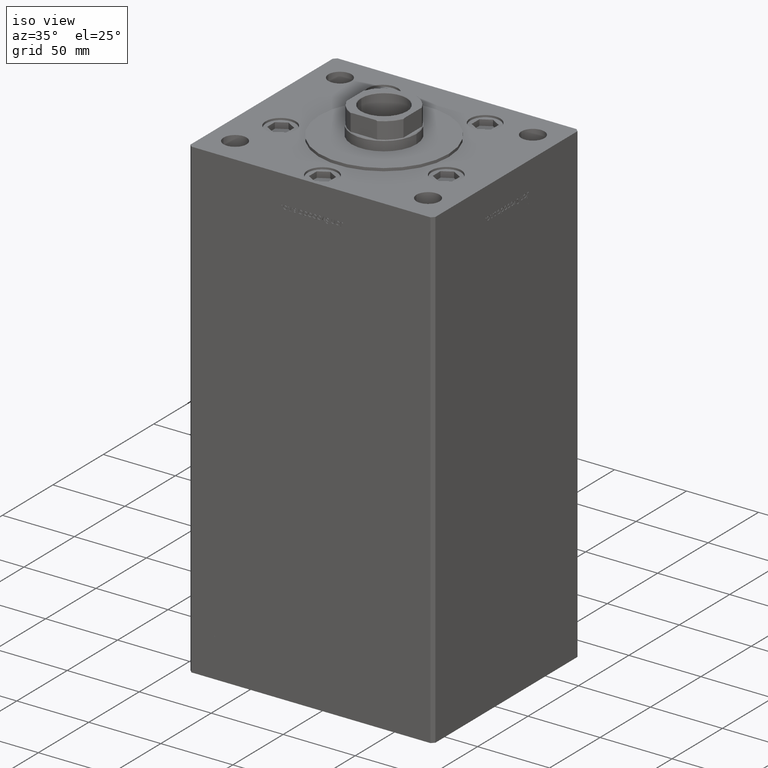
[diagram: clean part render]
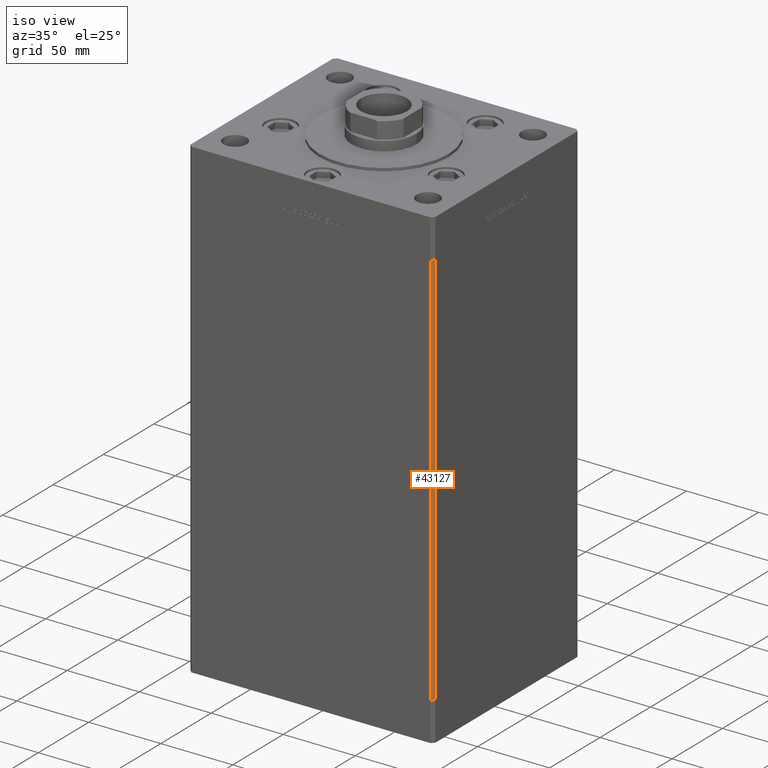
[diagram: same view with one face highlighted and labeled with its STEP entity id]
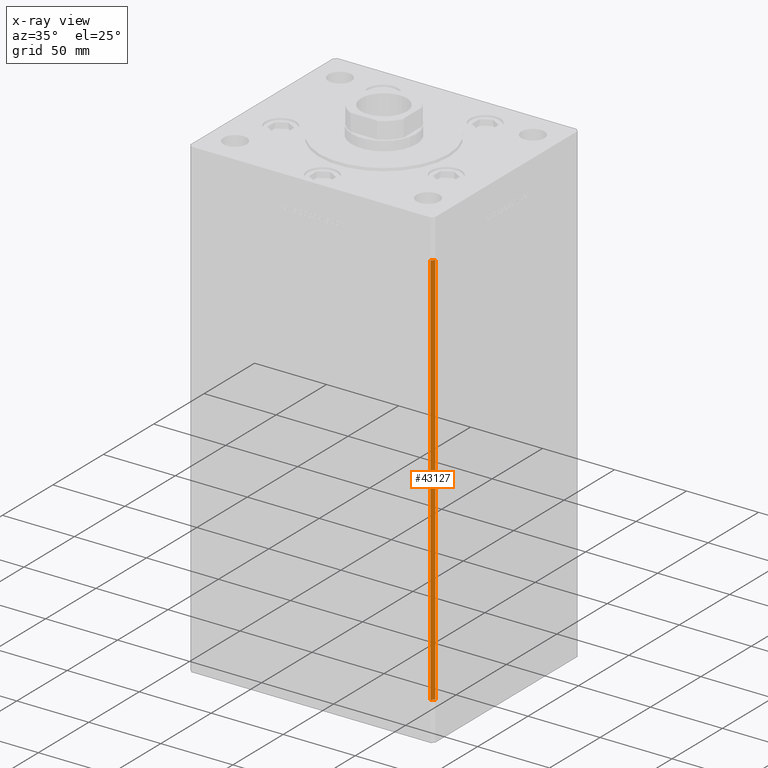
[diagram: x-ray of the same camera — body ghosted, the highlighted face saturated]
A machine part, iso view. The second image highlights one B-rep face of the part: STEP entity #43127.
The next image is the same camera in x-ray: the body ghosted, the highlighted face saturated — about 0% of this face is hidden behind the body in this view.
In plain terms, the highlighted planar face has unit normal (0.7071, -0.7071, 0).
Its self-contained STEP definition (entity closure, byte-faithful):
#756 = LINE ( 'NONE', #20001, #15305 ) ;
#859 = EDGE_LOOP ( 'NONE', ( #16010, #40169, #12240, #9629 ) ) ;
#1338 = CARTESIAN_POINT ( 'NONE',  ( 84.99999999999998579, -70.50000000000001421, 276.0000000000000000 ) ) ;
#2755 = FACE_OUTER_BOUND ( 'NONE', #859, .T. ) ;
#3052 = LINE ( 'NONE', #27022, #24761 ) ;
#5918 = PLANE ( 'NONE',  #22151 ) ;
#8225 = EDGE_CURVE ( 'NONE', #36557, #51542, #756, .T. ) ;
#9629 = ORIENTED_EDGE ( 'NONE', *, *, #48797, .T. ) ;
#11528 = EDGE_CURVE ( 'NONE', #36557, #16169, #39075, .T. ) ;
#12240 = ORIENTED_EDGE ( 'NONE', *, *, #8225, .T. ) ;
#12776 = VERTEX_POINT ( 'NONE', #28520 ) ;
#13895 = LINE ( 'NONE', #41057, #28186 ) ;
#14575 = EDGE_CURVE ( 'NONE', #16169, #12776, #3052, .T. ) ;
#15305 = VECTOR ( 'NONE', #16827, 1000.000000000000114 ) ;
#16010 = ORIENTED_EDGE ( 'NONE', *, *, #14575, .F. ) ;
#16169 = VERTEX_POINT ( 'NONE', #48494 ) ;
#16827 = DIRECTION ( 'NONE',  ( -0.7071067811865474617, -0.7071067811865474617, 0.000000000000000000 ) ) ;
#17333 = DIRECTION ( 'NONE',  ( -0.000000000000000000, -0.000000000000000000, -1.000000000000000000 ) ) ;
#18915 = CARTESIAN_POINT ( 'NONE',  ( 82.99999999999998579, -72.50000000000002842, 276.0000000000000000 ) ) ;
#19035 = CARTESIAN_POINT ( 'NONE',  ( 84.99999999999998579, -70.50000000000001421, 276.0000000000000000 ) ) ;
#20001 = CARTESIAN_POINT ( 'NONE',  ( 84.99999999999998579, -70.50000000000001421, 276.0000000000000000 ) ) ;
#22151 = AXIS2_PLACEMENT_3D ( 'NONE', #47020, #30422, #34137 ) ;
#22946 = VECTOR ( 'NONE', #39593, 1000.000000000000000 ) ;
#24761 = VECTOR ( 'NONE', #43635, 1000.000000000000114 ) ;
#27022 = CARTESIAN_POINT ( 'NONE',  ( 84.99999999999998579, -70.50000000000001421, 0.000000000000000000 ) ) ;
#28186 = VECTOR ( 'NONE', #17333, 1000.000000000000000 ) ;
#28520 = CARTESIAN_POINT ( 'NONE',  ( 82.99999999999998579, -72.50000000000002842, 0.000000000000000000 ) ) ;
#30422 = DIRECTION ( 'NONE',  ( 0.7071067811865475727, -0.7071067811865475727, 0.000000000000000000 ) ) ;
#34137 = DIRECTION ( 'NONE',  ( 0.7071067811865474617, 0.7071067811865474617, 0.000000000000000000 ) ) ;
#36557 = VERTEX_POINT ( 'NONE', #1338 ) ;
#39075 = LINE ( 'NONE', #19035, #22946 ) ;
#39593 = DIRECTION ( 'NONE',  ( -0.000000000000000000, -0.000000000000000000, -1.000000000000000000 ) ) ;
#40169 = ORIENTED_EDGE ( 'NONE', *, *, #11528, .F. ) ;
#41057 = CARTESIAN_POINT ( 'NONE',  ( 82.99999999999998579, -72.50000000000002842, 276.0000000000000000 ) ) ;
#43127 = ADVANCED_FACE ( 'NONE', ( #2755 ), #5918, .T. ) ;
#43635 = DIRECTION ( 'NONE',  ( -0.7071067811865474617, -0.7071067811865474617, 0.000000000000000000 ) ) ;
#47020 = CARTESIAN_POINT ( 'NONE',  ( 84.99999999999998579, -70.50000000000001421, 276.0000000000000000 ) ) ;
#48494 = CARTESIAN_POINT ( 'NONE',  ( 84.99999999999998579, -70.50000000000001421, 0.000000000000000000 ) ) ;
#48797 = EDGE_CURVE ( 'NONE', #51542, #12776, #13895, .T. ) ;
#51542 = VERTEX_POINT ( 'NONE', #18915 ) ;